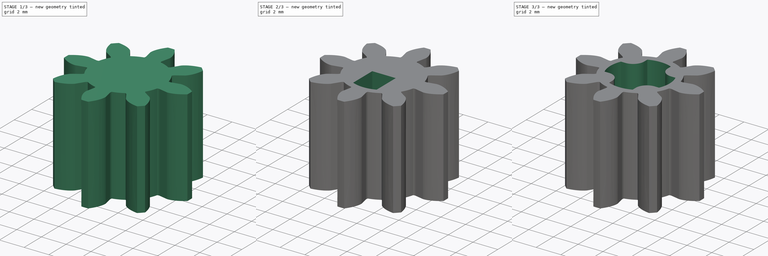
[diagram: build sequence overview — one tinted view per stage of 3, left to right]
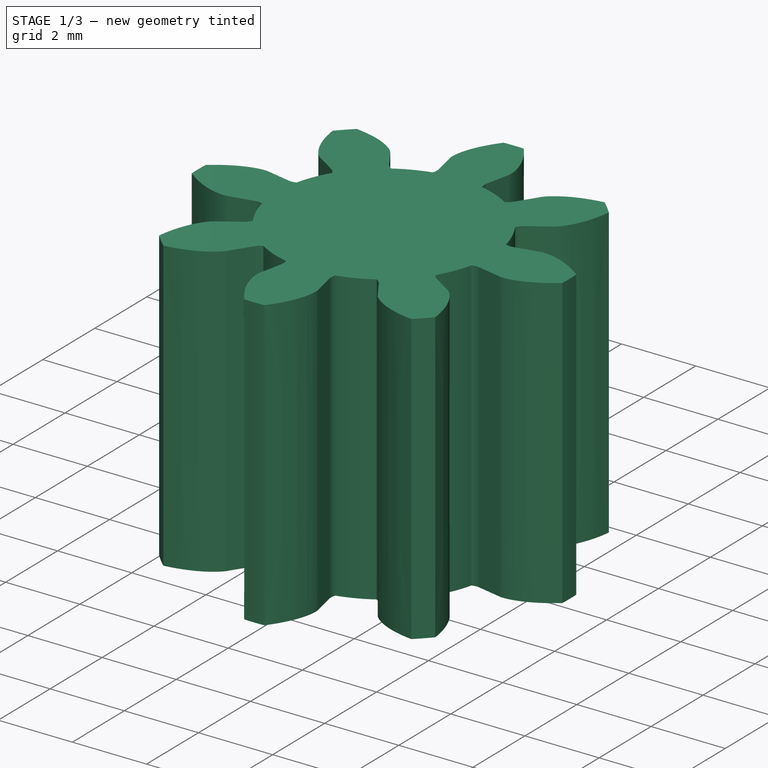
[diagram: stage 1 of 3 — iso view after this stage's code; geometry added in this stage tinted green]
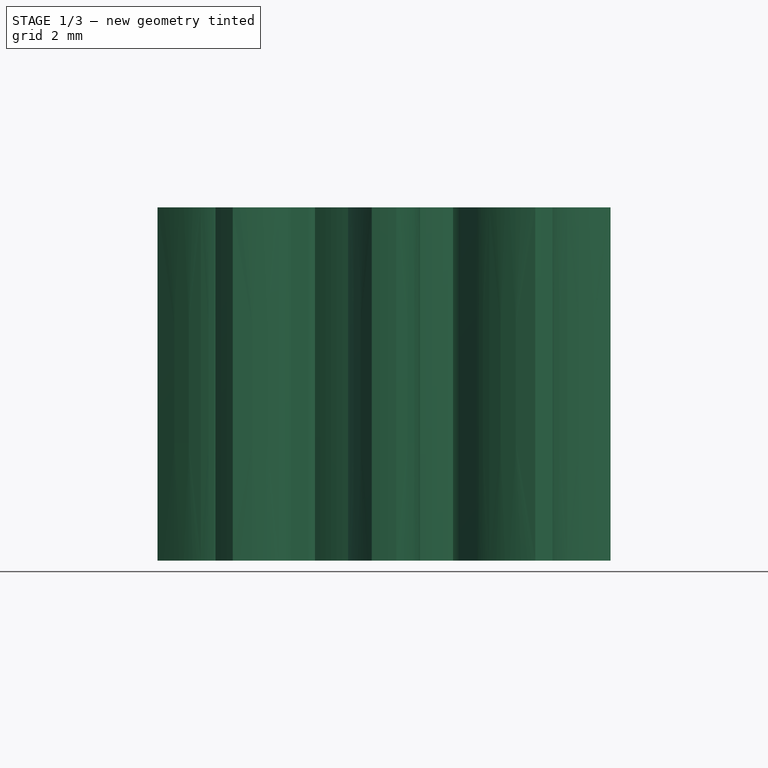
[diagram: stage 1 of 3 — front view after this stage's code; geometry added in this stage tinted green]
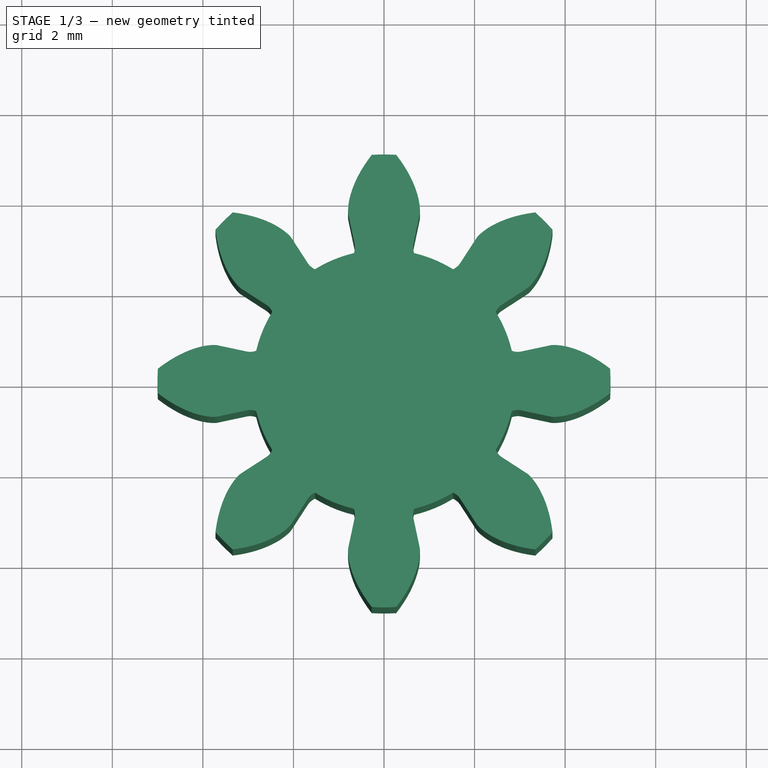
[diagram: stage 1 of 3 — top view after this stage's code; geometry added in this stage tinted green]
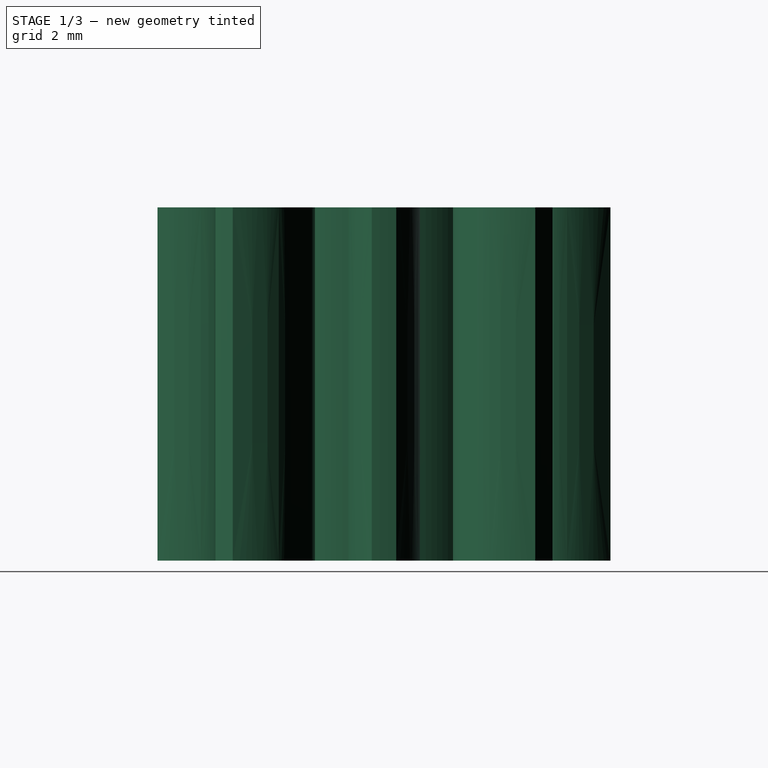
[diagram: stage 1 of 3 — right view after this stage's code; geometry added in this stage tinted green]
FCSTD DOCUMENT  (FreeCAD 0.17R13541 (Git))
Label: Gear3
License: All rights reserved
LicenseURL: http://en.wikipedia.org/wiki/All_rights_reserved
objects: PartDesign::Pad×2, Sketcher::SketchObject×2, Part::Part2DObjectPython×1, PartDesign::Pocket×1, PartDesign::PolarPattern×1, PartDesign::Fillet×1, PartDesign::Body×1
note: 12 computed .brp shape members not serialized (recipe doc carries the construction recipe); baked Part::Feature solids carry a one-line shape summary decoded from their .brp

FEATURE [Part::Part2DObjectPython] InvoluteGear  # Draft 2D object (typed FeaturePython)
  ExternalGear = true
  HighPrecision = true
  Modules = 1
  NumberOfTeeth = 8
  PressureAngle = 20
FEATURE [PartDesign::Pad] Pad
  Length = 7.8
  Length2 = 100
  Profile = -> InvoluteGear
  Type = 0
FEATURE [Sketcher::SketchObject] Sketch
  MapMode = 5
  Placement = pos=(0,0,0) rot=(1,0,0;3.14159rad)
  Support = -> [Pad]
  sketch-geometry (6):
    g0: LineSegment StartX=0 StartY=0 StartZ=0 EndX=0.95 EndY=0 EndZ=0
    g1: LineSegment StartX=0.95 StartY=0 StartZ=0 EndX=0.95 EndY=2.20397 EndZ=0
    g2: LineSegment StartX=0 StartY=0 StartZ=0 EndX=-0.95 EndY=0 EndZ=0
    g3: LineSegment StartX=-0.95 StartY=0 StartZ=0 EndX=-0.95 EndY=2.20397 EndZ=0
    g4: ArcOfCircle CenterX=0 CenterY=0 CenterZ=0 NormalX=0 NormalY=0 NormalZ=1 AngleXU=0 Radius=2.4 StartAngle=1.16382 EndAngle=1.97777
    g5: GeomPoint X=0 Y=2.4 Z=0
  constraints (16):
    c: Coincident(g0,g-1)
    c: PointOnObject(g0,g-1)
    c: Coincident(g1,g0)
    c: Vertical(g1)
    c: Coincident(g2,g-1)
    c: PointOnObject(g2,g-1)
    c: Coincident(g3,g2)
    c: Vertical(g3)
    c: Coincident(g4,g-1)
    c: Coincident(g4,g3)
    c: Coincident(g4,g1)
    c: DistanceX(g-1,g0) = 0.95
    c: DistanceX(g2,g-1) = 0.95
    c: PointOnObject(g5,g4)
    c: PointOnObject(g5,g-2)
    c: DistanceY(g-1,g5) = 2.4
FEATURE [Sketcher::SketchObject] Sketch001
  MapMode = 5
  Placement = pos=(0,0,7.8) rot=(0,0,1;0rad)
  sketch-geometry (1):
    g0: Circle CenterX=0 CenterY=0 CenterZ=0 NormalX=0 NormalY=0 NormalZ=1 AngleXU=0 Radius=2.9
  constraints (2):
    c: Radius(g0) = 2.9
    c: Coincident(g0,g-1)
FEATURE [PartDesign::Pad] Pad001
  BaseFeature = -> Pad
  Length = 7.8
  Length2 = 100
  Profile = -> Sketch001
  Reversed = true
  Type = 0
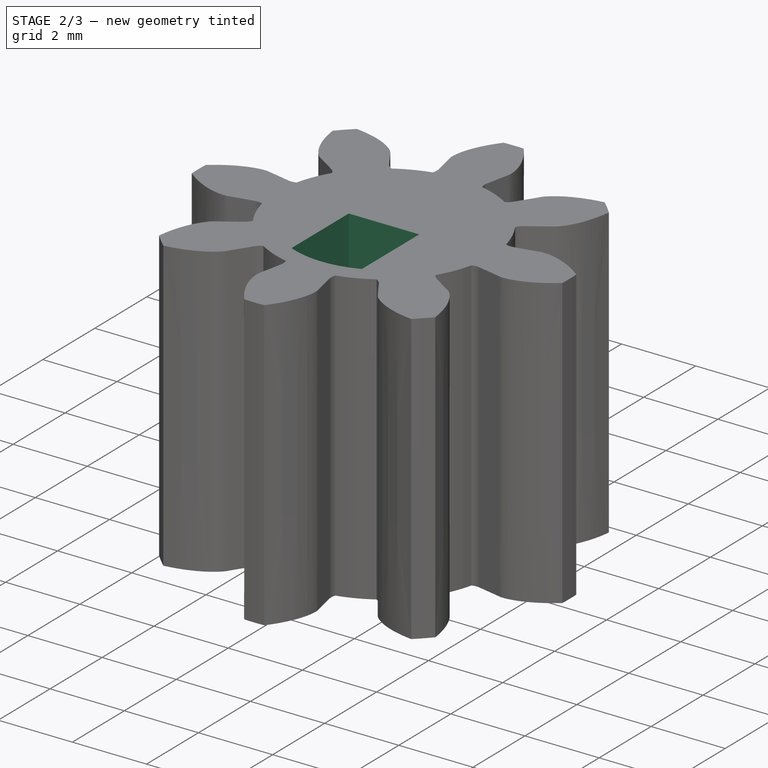
[diagram: stage 2 of 3 — iso view after this stage's code; geometry added in this stage tinted green]
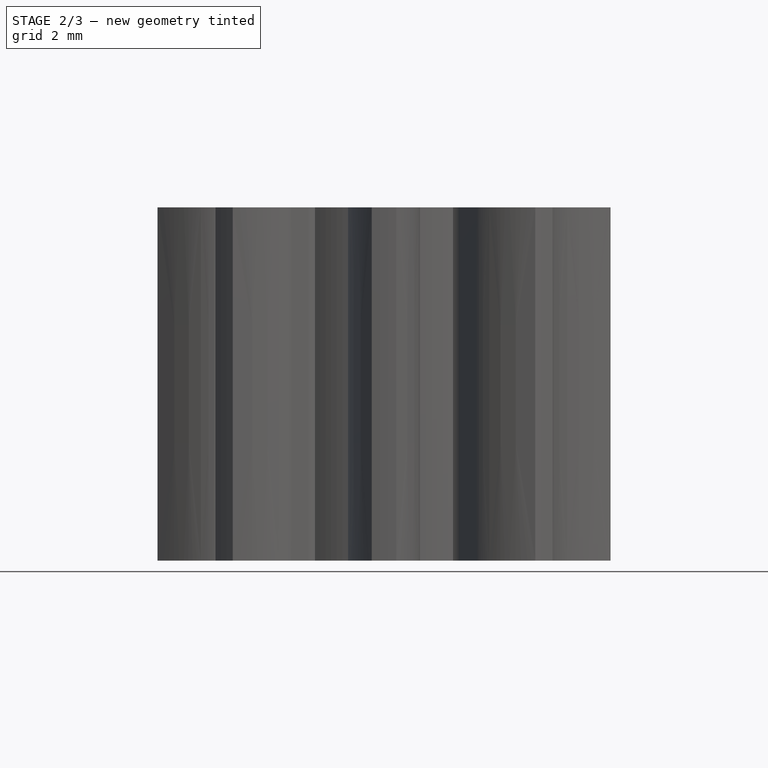
[diagram: stage 2 of 3 — front view after this stage's code; geometry added in this stage tinted green]
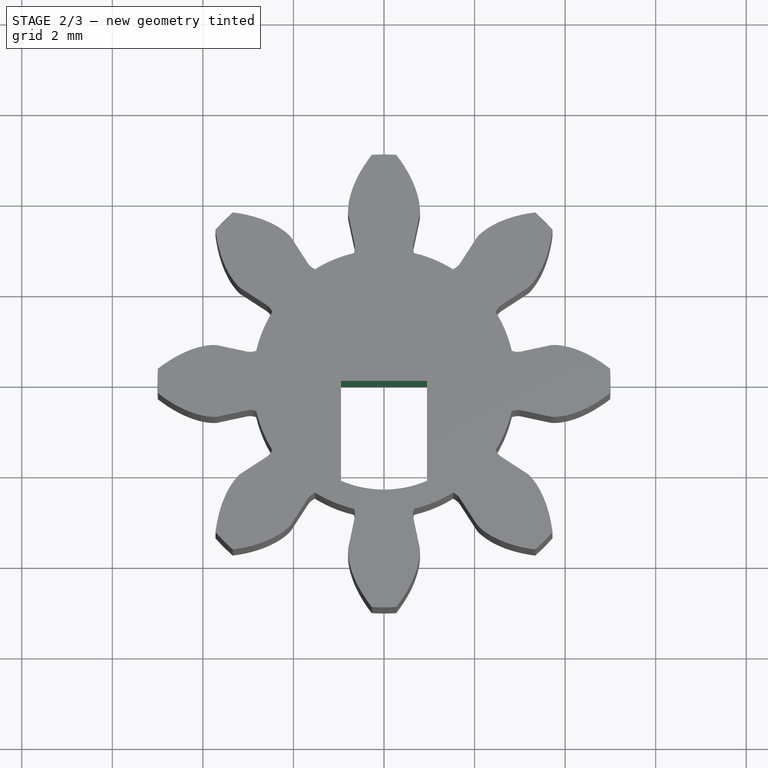
[diagram: stage 2 of 3 — top view after this stage's code; geometry added in this stage tinted green]
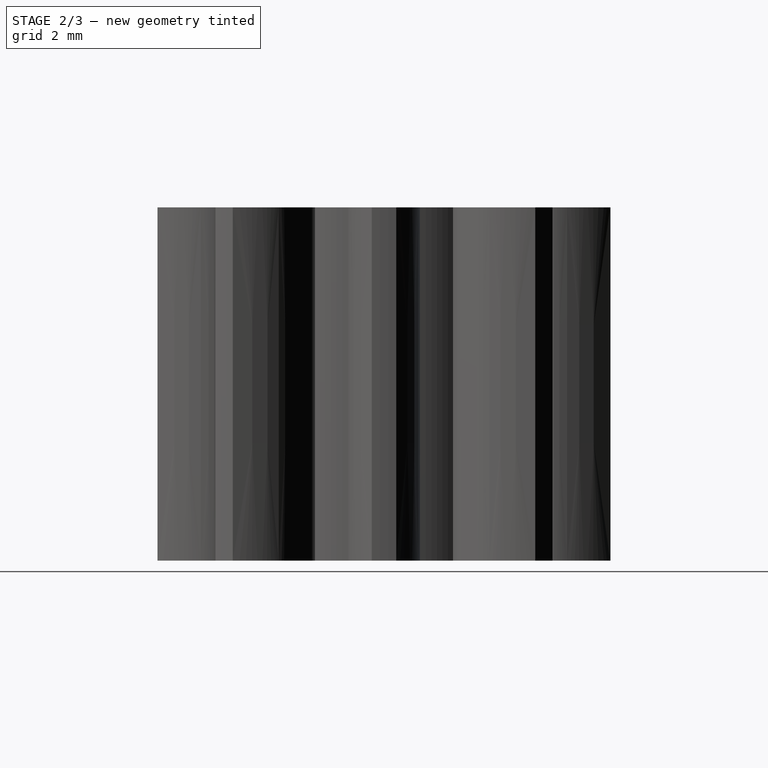
[diagram: stage 2 of 3 — right view after this stage's code; geometry added in this stage tinted green]
FEATURE [PartDesign::Pocket] Pocket
  BaseFeature = -> Pad001
  Length = 5
  Length2 = 100
  Profile = -> Sketch
  Type = 1
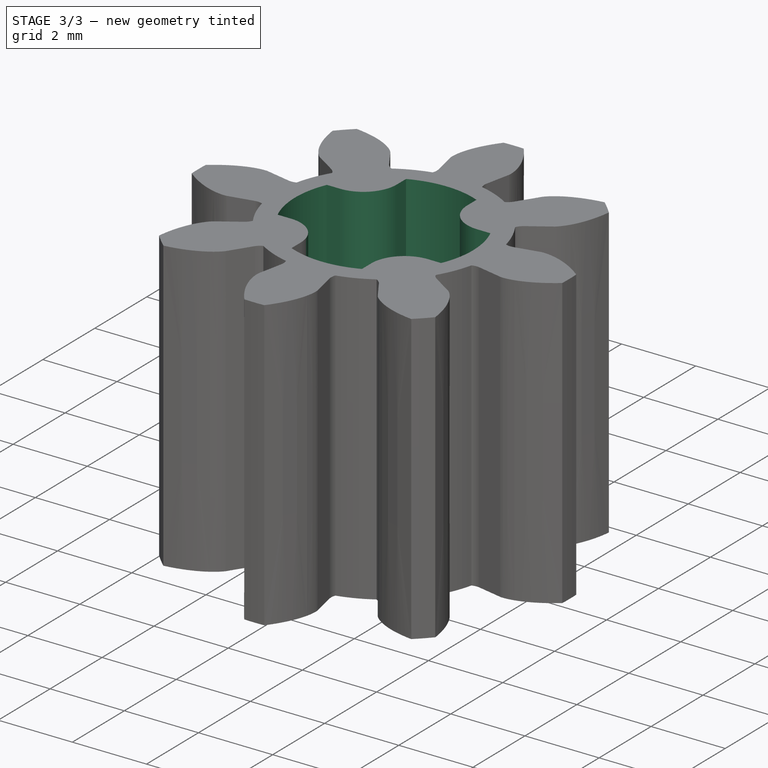
[diagram: stage 3 of 3 — iso view after this stage's code; geometry added in this stage tinted green]
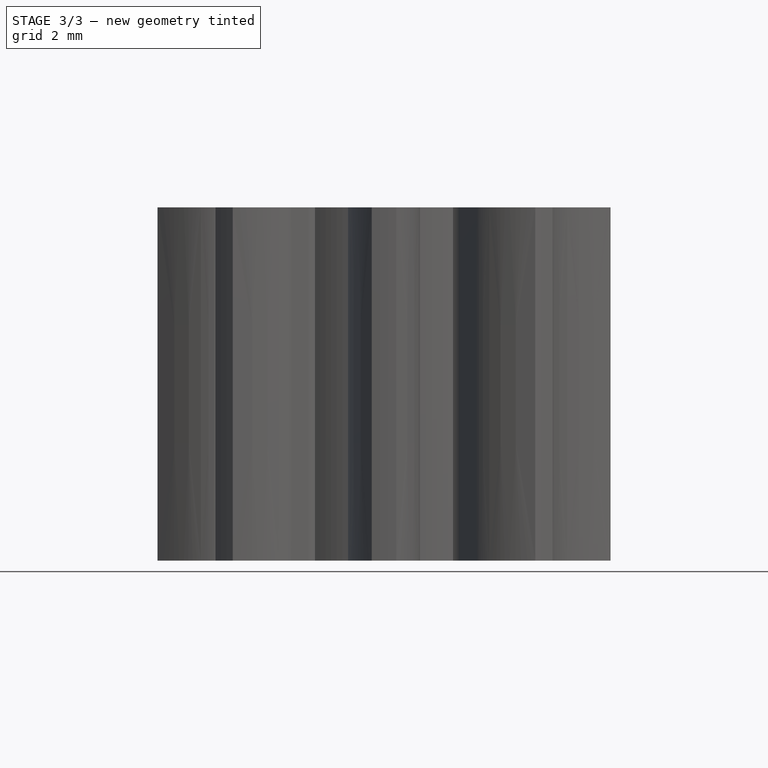
[diagram: stage 3 of 3 — front view after this stage's code; geometry added in this stage tinted green]
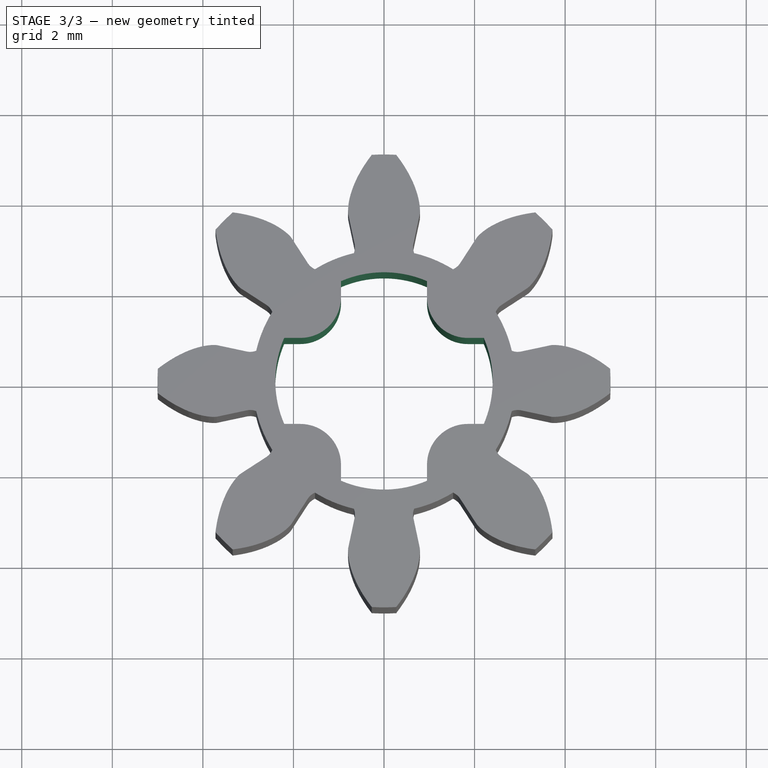
[diagram: stage 3 of 3 — top view after this stage's code; geometry added in this stage tinted green]
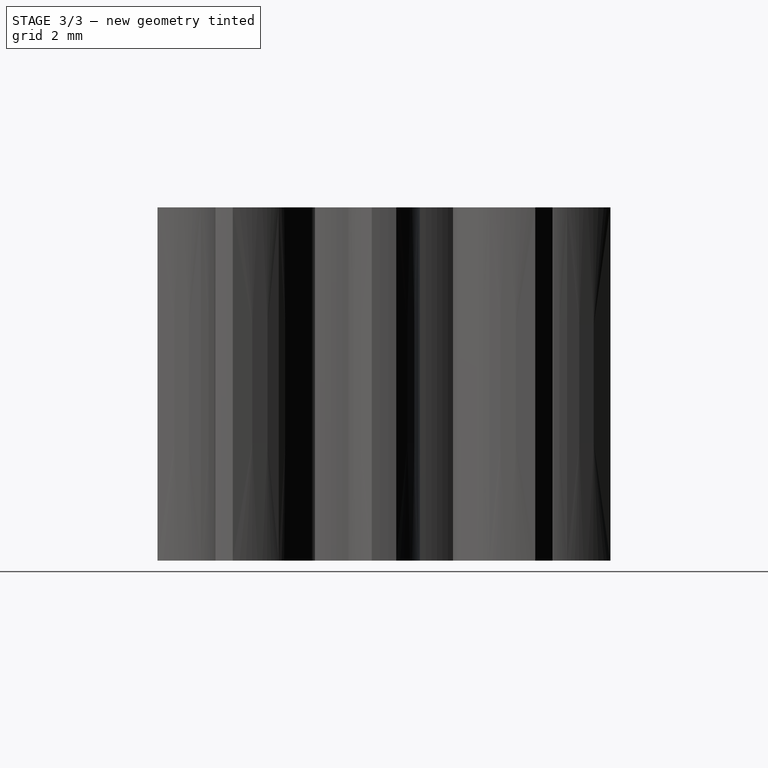
[diagram: stage 3 of 3 — right view after this stage's code; geometry added in this stage tinted green]
FEATURE [PartDesign::PolarPattern] PolarPattern
  Angle = 360
  Axis = -> Sketch [N_Axis]
  BaseFeature = -> Pocket
  Occurrences = 4
  Originals = -> [Pocket]
FEATURE [PartDesign::Fillet] Fillet
  Base = -> PolarPattern [Edge195,Edge203,Edge197,Edge200]
  BaseFeature = -> PolarPattern
  Radius = 0.9
FEATURE [PartDesign::Body] Body
  Group = -> [InvoluteGear,Pad,Pad001,Sketch001,Sketch,Pocket,PolarPattern,Fillet]
  Origin = -> Origin
  Tip = -> Fillet
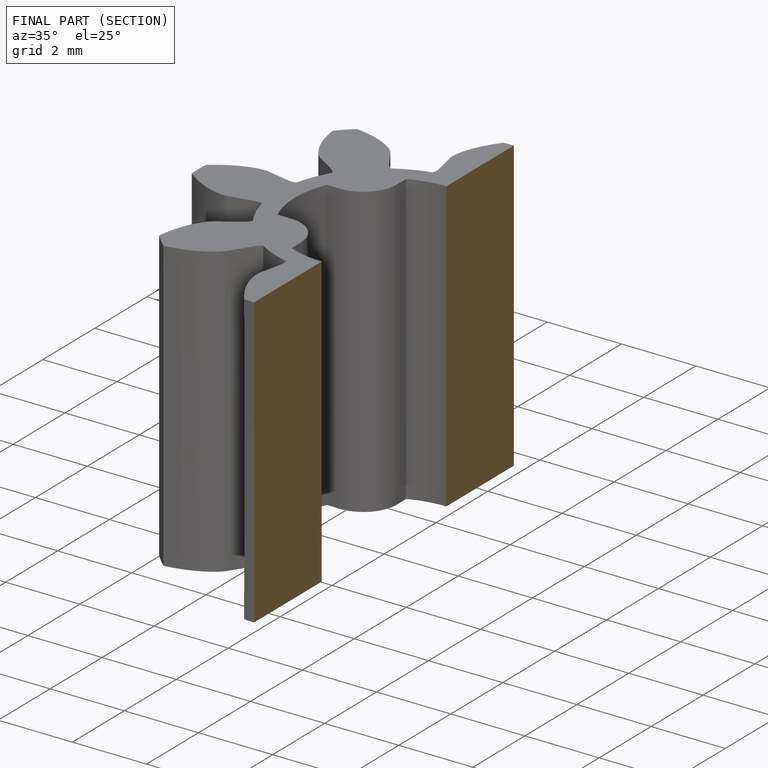
[diagram: finished part — half-section view (interior)]
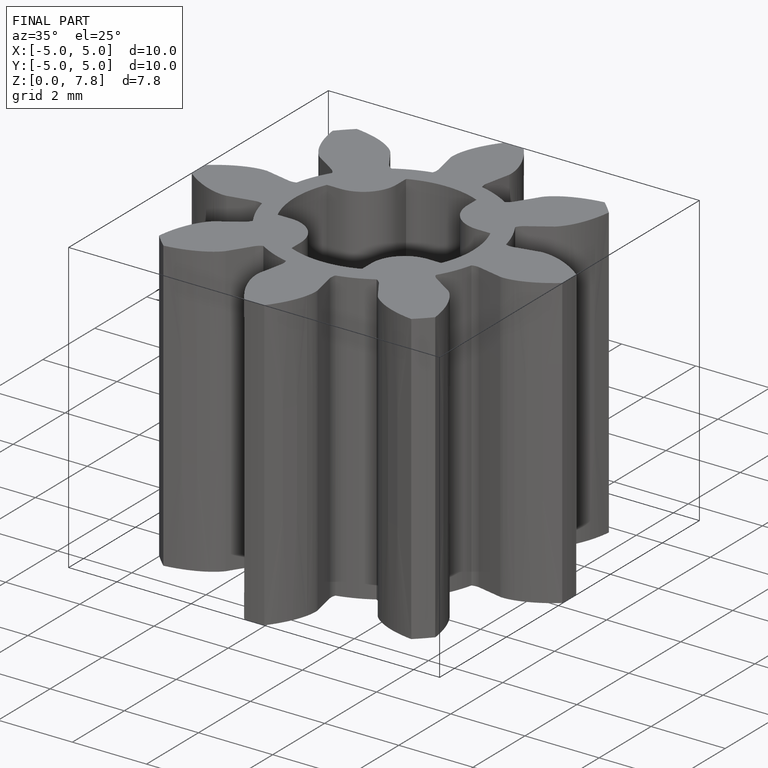
[diagram: finished part — iso view with bounding-box wireframe]
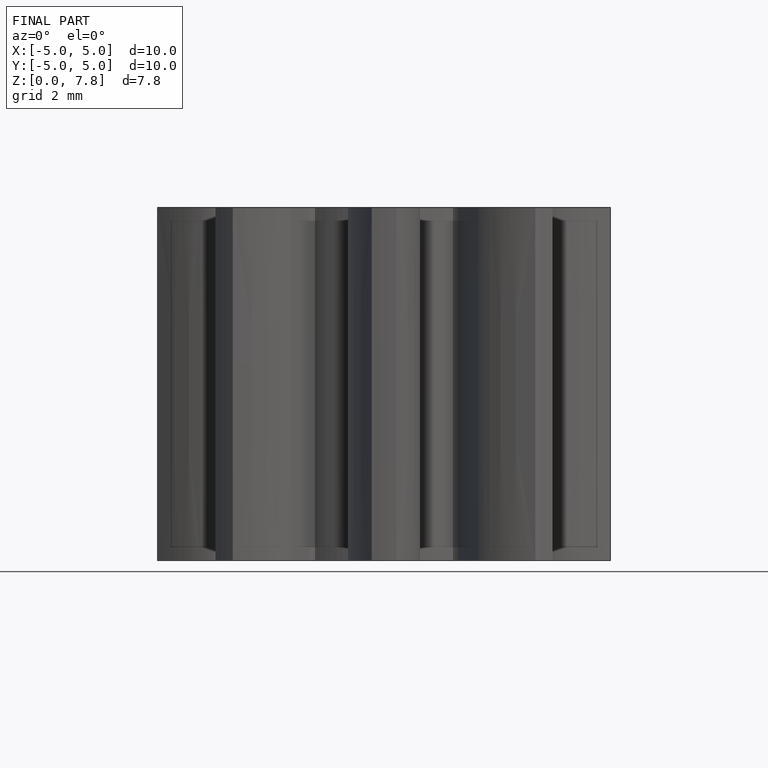
[diagram: finished part — front view with bounding-box wireframe]
